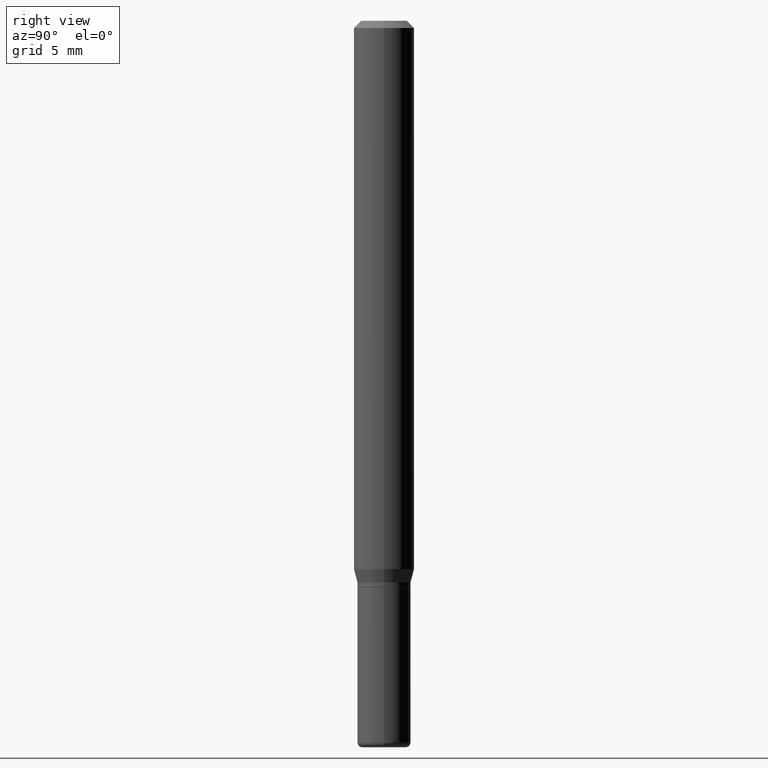
[diagram: clean part render]
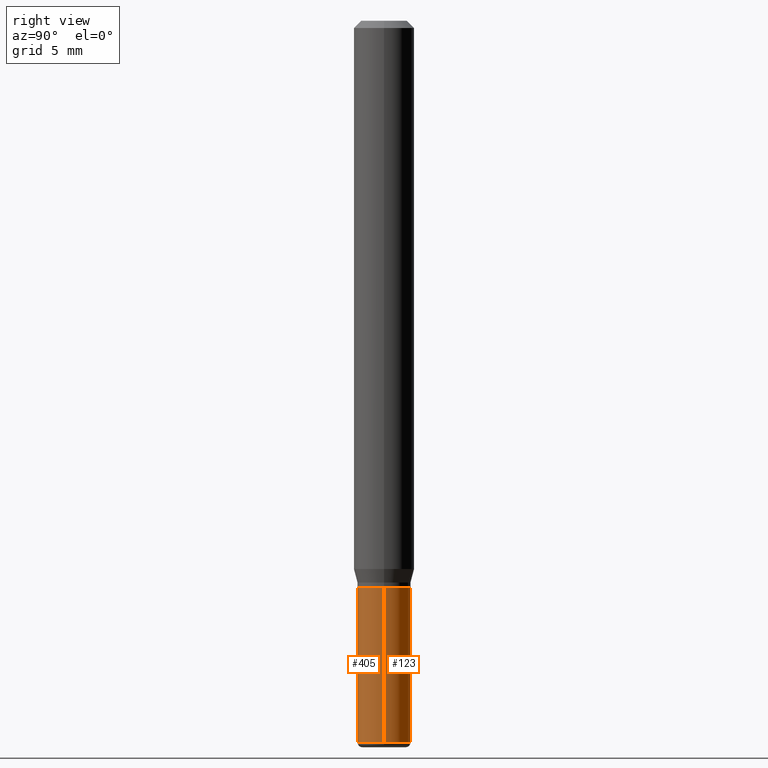
[diagram: same view with one multi-face feature highlighted, each face labeled with its STEP entity id]
A machine part, right view. The highlighted faces form ONE feature: a constant-radius fillet chain: 2 tangent blend faces with common blend radius 1.397 mm. The faces share edges in the B-rep.
Their STEP definitions:
[1] entity #123 (Cylinder):
#16 = CARTESIAN_POINT ( 'NONE',  ( 3.643748521215853910E-29, -5.202307194876288105E-15, -1.490000000000000213 ) ) ;
#18 = VERTEX_POINT ( 'NONE', #439 ) ;
#19 = CARTESIAN_POINT ( 'NONE',  ( -0.05499999999999995171, -4.252871675993329426E-15, -1.490000000000000213 ) ) ;
#45 = VECTOR ( 'NONE', #342, 39.37007874015748143 ) ;
#49 = ORIENTED_EDGE ( 'NONE', *, *, #139, .F. ) ;
#53 = CYLINDRICAL_SURFACE ( 'NONE', #112, 0.05499999999999997946 ) ;
#57 = ORIENTED_EDGE ( 'NONE', *, *, #214, .T. ) ;
#63 = LINE ( 'NONE', #343, #45 ) ;
#84 = FACE_OUTER_BOUND ( 'NONE', #168, .T. ) ;
#88 = ORIENTED_EDGE ( 'NONE', *, *, #89, .T. ) ;
#89 = EDGE_CURVE ( 'NONE', #18, #454, #171, .T. ) ;
#112 = AXIS2_PLACEMENT_3D ( 'NONE', #207, #224, #498 ) ;
#123 = ADVANCED_FACE ( 'NONE', ( #84 ), #53, .T. ) ;
#126 = VERTEX_POINT ( 'NONE', #145 ) ;
#139 = EDGE_CURVE ( 'NONE', #18, #126, #187, .T. ) ;
#145 = CARTESIAN_POINT ( 'NONE',  ( 0.05500000000000000028, -4.469096113719225052E-15, -1.170000000000000151 ) ) ;
#165 = VECTOR ( 'NONE', #419, 39.37007874015748143 ) ;
#168 = EDGE_LOOP ( 'NONE', ( #88, #57, #499, #49 ) ) ;
#170 = DIRECTION ( 'NONE',  ( -2.445468806185136597E-29, 3.491481338843145583E-15, 1.000000000000000000 ) ) ;
#171 = CIRCLE ( 'NONE', #452, 0.05499999999999995171 ) ;
#187 = LINE ( 'NONE', #268, #165 ) ;
#202 = CARTESIAN_POINT ( 'NONE',  ( 2.861198503236610065E-29, -4.085033166446480067E-15, -1.170000000000000151 ) ) ;
#207 = CARTESIAN_POINT ( 'NONE',  ( 0.000000000000000000, 0.000000000000000000, 0.000000000000000000 ) ) ;
#214 = EDGE_CURVE ( 'NONE', #454, #437, #63, .T. ) ;
#224 = DIRECTION ( 'NONE',  ( -2.445468806185136597E-29, 3.491481338843145583E-15, 1.000000000000000000 ) ) ;
#242 = DIRECTION ( 'NONE',  ( 1.000000000000000000, -6.982962677686262766E-15, 0.000000000000000000 ) ) ;
#260 = AXIS2_PLACEMENT_3D ( 'NONE', #202, #354, #242 ) ;
#268 = CARTESIAN_POINT ( 'NONE',  ( 0.05499999999999997946, -3.840629472727444916E-16, 2.681897226687763425E-30 ) ) ;
#296 = DIRECTION ( 'NONE',  ( 1.000000000000000000, -6.982962677686269077E-15, 0.000000000000000000 ) ) ;
#330 = CIRCLE ( 'NONE', #260, 0.05500000000000000028 ) ;
#342 = DIRECTION ( 'NONE',  ( -2.445468806185136877E-29, 3.491481338843145188E-15, 1.000000000000000000 ) ) ;
#343 = CARTESIAN_POINT ( 'NONE',  ( -0.05499999999999997946, 3.907985046680549563E-16, -2.705414299640196961E-30 ) ) ;
#354 = DIRECTION ( 'NONE',  ( -2.445468806185136597E-29, 3.491481338843145583E-15, 1.000000000000000000 ) ) ;
#389 = CARTESIAN_POINT ( 'NONE',  ( -0.05500000000000000028, -4.252871675993329426E-15, -1.170000000000000151 ) ) ;
#413 = EDGE_CURVE ( 'NONE', #126, #437, #330, .T. ) ;
#419 = DIRECTION ( 'NONE',  ( -2.445468806185136877E-29, 3.491481338843145188E-15, 1.000000000000000000 ) ) ;
#437 = VERTEX_POINT ( 'NONE', #389 ) ;
#439 = CARTESIAN_POINT ( 'NONE',  ( 0.05499999999999995171, -5.586370142149032301E-15, -1.490000000000000213 ) ) ;
#452 = AXIS2_PLACEMENT_3D ( 'NONE', #16, #170, #296 ) ;
#454 = VERTEX_POINT ( 'NONE', #19 ) ;
#498 = DIRECTION ( 'NONE',  ( 1.000000000000000000, -6.982962677686265922E-15, 4.876176775795935232E-29 ) ) ;
#499 = ORIENTED_EDGE ( 'NONE', *, *, #413, .F. ) ;
[2] entity #405 (Cylinder):
#18 = VERTEX_POINT ( 'NONE', #439 ) ;
#19 = CARTESIAN_POINT ( 'NONE',  ( -0.05499999999999995171, -4.252871675993329426E-15, -1.490000000000000213 ) ) ;
#45 = VECTOR ( 'NONE', #342, 39.37007874015748143 ) ;
#63 = LINE ( 'NONE', #343, #45 ) ;
#80 = DIRECTION ( 'NONE',  ( -2.445468806185136597E-29, 3.491481338843145583E-15, 1.000000000000000000 ) ) ;
#101 = ORIENTED_EDGE ( 'NONE', *, *, #214, .F. ) ;
#109 = DIRECTION ( 'NONE',  ( 1.000000000000000000, -6.982962677686269077E-15, 0.000000000000000000 ) ) ;
#117 = DIRECTION ( 'NONE',  ( 1.000000000000000000, -6.982962677686265922E-15, 4.876176775795935232E-29 ) ) ;
#126 = VERTEX_POINT ( 'NONE', #145 ) ;
#131 = ORIENTED_EDGE ( 'NONE', *, *, #208, .T. ) ;
#139 = EDGE_CURVE ( 'NONE', #18, #126, #187, .T. ) ;
#145 = CARTESIAN_POINT ( 'NONE',  ( 0.05500000000000000028, -4.469096113719225052E-15, -1.170000000000000151 ) ) ;
#165 = VECTOR ( 'NONE', #419, 39.37007874015748143 ) ;
#187 = LINE ( 'NONE', #268, #165 ) ;
#208 = EDGE_CURVE ( 'NONE', #454, #18, #511, .T. ) ;
#209 = ORIENTED_EDGE ( 'NONE', *, *, #497, .F. ) ;
#214 = EDGE_CURVE ( 'NONE', #454, #437, #63, .T. ) ;
#265 = ORIENTED_EDGE ( 'NONE', *, *, #139, .T. ) ;
#267 = CARTESIAN_POINT ( 'NONE',  ( 3.643748521215853910E-29, -5.202307194876288105E-15, -1.490000000000000213 ) ) ;
#268 = CARTESIAN_POINT ( 'NONE',  ( 0.05499999999999997946, -3.840629472727444916E-16, 2.681897226687763425E-30 ) ) ;
#269 = AXIS2_PLACEMENT_3D ( 'NONE', #313, #80, #117 ) ;
#313 = CARTESIAN_POINT ( 'NONE',  ( 0.000000000000000000, 0.000000000000000000, 0.000000000000000000 ) ) ;
#342 = DIRECTION ( 'NONE',  ( -2.445468806185136877E-29, 3.491481338843145188E-15, 1.000000000000000000 ) ) ;
#343 = CARTESIAN_POINT ( 'NONE',  ( -0.05499999999999997946, 3.907985046680549563E-16, -2.705414299640196961E-30 ) ) ;
#363 = DIRECTION ( 'NONE',  ( -2.445468806185136597E-29, 3.491481338843145583E-15, 1.000000000000000000 ) ) ;
#371 = CIRCLE ( 'NONE', #453, 0.05500000000000000028 ) ;
#374 = CARTESIAN_POINT ( 'NONE',  ( 2.861198503236610065E-29, -4.085033166446480067E-15, -1.170000000000000151 ) ) ;
#389 = CARTESIAN_POINT ( 'NONE',  ( -0.05500000000000000028, -4.252871675993329426E-15, -1.170000000000000151 ) ) ;
#405 = ADVANCED_FACE ( 'NONE', ( #513 ), #466, .T. ) ;
#411 = DIRECTION ( 'NONE',  ( 1.000000000000000000, -6.982962677686262766E-15, 0.000000000000000000 ) ) ;
#416 = DIRECTION ( 'NONE',  ( -2.445468806185136597E-29, 3.491481338843145583E-15, 1.000000000000000000 ) ) ;
#419 = DIRECTION ( 'NONE',  ( -2.445468806185136877E-29, 3.491481338843145188E-15, 1.000000000000000000 ) ) ;
#420 = AXIS2_PLACEMENT_3D ( 'NONE', #267, #416, #109 ) ;
#437 = VERTEX_POINT ( 'NONE', #389 ) ;
#439 = CARTESIAN_POINT ( 'NONE',  ( 0.05499999999999995171, -5.586370142149032301E-15, -1.490000000000000213 ) ) ;
#447 = EDGE_LOOP ( 'NONE', ( #101, #131, #265, #209 ) ) ;
#453 = AXIS2_PLACEMENT_3D ( 'NONE', #374, #363, #411 ) ;
#454 = VERTEX_POINT ( 'NONE', #19 ) ;
#466 = CYLINDRICAL_SURFACE ( 'NONE', #269, 0.05499999999999997946 ) ;
#497 = EDGE_CURVE ( 'NONE', #437, #126, #371, .T. ) ;
#511 = CIRCLE ( 'NONE', #420, 0.05499999999999995171 ) ;
#513 = FACE_OUTER_BOUND ( 'NONE', #447, .T. ) ;